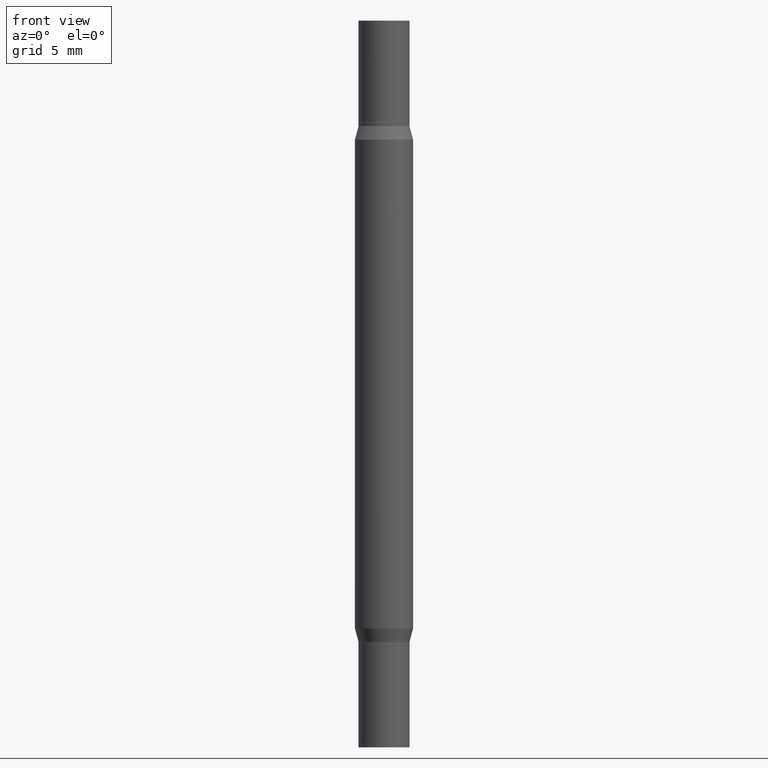
[diagram: clean part render]
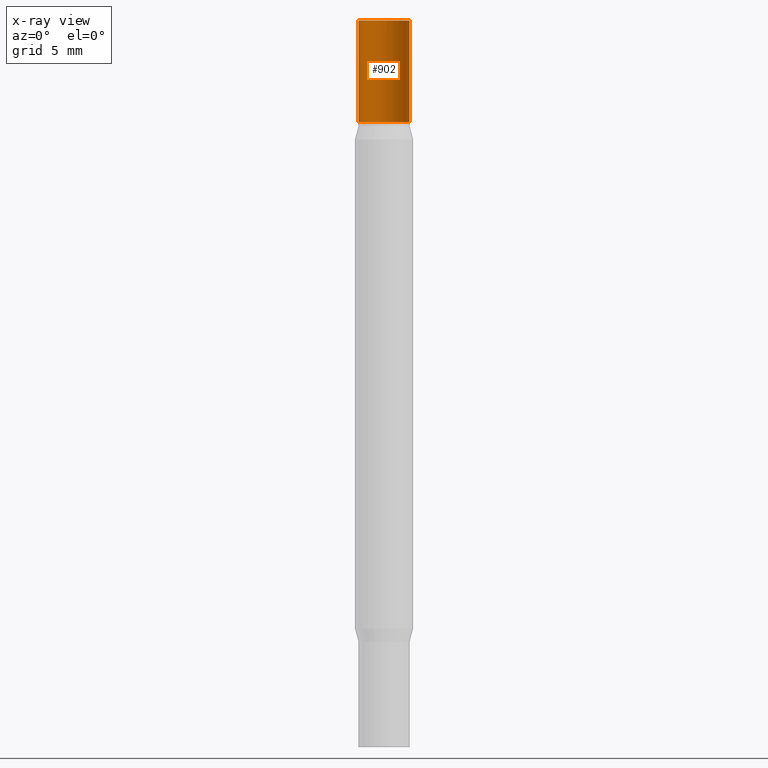
[diagram: x-ray — body ghosted, one internal face saturated and labeled with its STEP entity id]
A machine part, front view, then the same camera in x-ray: the body is ghosted and one INTERNAL B-rep face — a face not visible from any outside direction — is saturated and labeled: STEP entity #902.
In plain terms, the highlighted cylindrical surface (edge-blend (fillet) strip) has radius 1.7501 mm, axis along (-0, -0, -1).
Its self-contained STEP definition (entity closure, byte-faithful):
#65 = DIRECTION ( 'NONE',  ( 2.445468806185136597E-29, 3.491805094961124077E-15, 1.000000000000000000 ) ) ;
#71 = DIRECTION ( 'NONE',  ( -2.445468806185136597E-29, -3.491805094961124077E-15, -1.000000000000000000 ) ) ;
#103 = EDGE_CURVE ( 'NONE', #426, #483, #291, .T. ) ;
#110 = VECTOR ( 'NONE', #288, 39.37007874015748143 ) ;
#155 = DIRECTION ( 'NONE',  ( 1.000000000000000000, -6.982962677686265922E-15, 0.000000000000000000 ) ) ;
#158 = VERTEX_POINT ( 'NONE', #547 ) ;
#162 = CIRCLE ( 'NONE', #756, 0.06890000000000007230 ) ;
#218 = LINE ( 'NONE', #973, #110 ) ;
#233 = DIRECTION ( 'NONE',  ( -2.445468806185136877E-29, -3.491805094961123683E-15, -1.000000000000000000 ) ) ;
#250 = DIRECTION ( 'NONE',  ( 2.445468806185136597E-29, 3.491805094961124077E-15, 1.000000000000000000 ) ) ;
#263 = DIRECTION ( 'NONE',  ( 1.000000000000000000, -6.982962677686265922E-15, 0.000000000000000000 ) ) ;
#288 = DIRECTION ( 'NONE',  ( -2.445468806185136877E-29, -3.491805094961123683E-15, -1.000000000000000000 ) ) ;
#291 = LINE ( 'NONE', #895, #298 ) ;
#298 = VECTOR ( 'NONE', #233, 39.37007874015748143 ) ;
#302 = CARTESIAN_POINT ( 'NONE',  ( 0.000000000000000000, -6.873299672471851415E-15, -1.968499999999999694 ) ) ;
#341 = VERTEX_POINT ( 'NONE', #356 ) ;
#356 = CARTESIAN_POINT ( 'NONE',  ( -0.06890000000000007230, -8.163773080062737161E-18, -0.2755999999999999006 ) ) ;
#377 = DIRECTION ( 'NONE',  ( 1.000000000000000000, -6.982962677686258822E-15, 0.000000000000000000 ) ) ;
#380 = CARTESIAN_POINT ( 'NONE',  ( 4.139934141990817236E-29, -9.620228272121656440E-16, -0.2755999999999999006 ) ) ;
#426 = VERTEX_POINT ( 'NONE', #772 ) ;
#483 = VERTEX_POINT ( 'NONE', #691 ) ;
#486 = EDGE_LOOP ( 'NONE', ( #764, #968, #934, #537 ) ) ;
#487 = CIRCLE ( 'NONE', #617, 0.06890000000000007230 ) ;
#537 = ORIENTED_EDGE ( 'NONE', *, *, #933, .T. ) ;
#547 = CARTESIAN_POINT ( 'NONE',  ( -0.06890000000000007230, -8.163773080062677072E-18, 2.731847993664279982E-16 ) ) ;
#617 = AXIS2_PLACEMENT_3D ( 'NONE', #380, #250, #263 ) ;
#665 = CYLINDRICAL_SURFACE ( 'NONE', #697, 0.06890000000000007230 ) ;
#672 = EDGE_CURVE ( 'NONE', #158, #341, #218, .T. ) ;
#691 = CARTESIAN_POINT ( 'NONE',  ( 0.06890000000000007230, -1.443148955704749777E-15, -0.2755999999999999006 ) ) ;
#697 = AXIS2_PLACEMENT_3D ( 'NONE', #302, #71, #377 ) ;
#756 = AXIS2_PLACEMENT_3D ( 'NONE', #977, #65, #155 ) ;
#764 = ORIENTED_EDGE ( 'NONE', *, *, #672, .F. ) ;
#772 = CARTESIAN_POINT ( 'NONE',  ( 0.06890000000000007230, -4.808074715334629460E-16, 2.731847993664263218E-16 ) ) ;
#788 = EDGE_CURVE ( 'NONE', #426, #158, #162, .T. ) ;
#823 = FACE_OUTER_BOUND ( 'NONE', #486, .T. ) ;
#895 = CARTESIAN_POINT ( 'NONE',  ( 0.06890000000000007230, -7.354425800964435942E-15, -1.968499999999999694 ) ) ;
#902 = ADVANCED_FACE ( 'NONE', ( #823 ), #665, .T. ) ;
#933 = EDGE_CURVE ( 'NONE', #483, #341, #487, .T. ) ;
#934 = ORIENTED_EDGE ( 'NONE', *, *, #103, .T. ) ;
#968 = ORIENTED_EDGE ( 'NONE', *, *, #788, .F. ) ;
#973 = CARTESIAN_POINT ( 'NONE',  ( -0.06890000000000007230, -6.400611360425392691E-15, -1.968499999999999694 ) ) ;
#977 = CARTESIAN_POINT ( 'NONE',  ( 4.813905344975441835E-29, 3.186569591213228268E-19, 2.731847993664263218E-16 ) ) ;